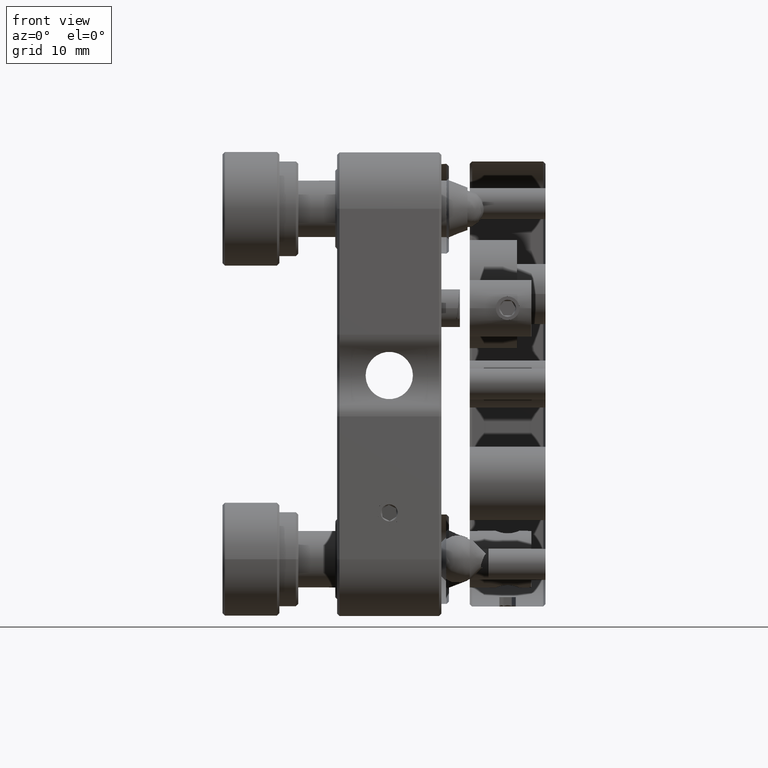
[diagram: clean part render]
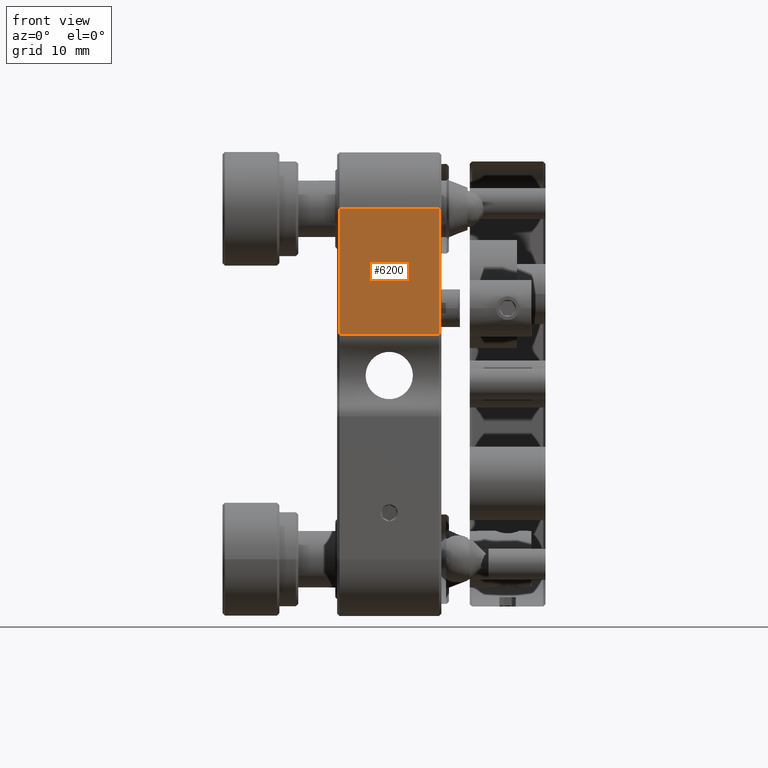
[diagram: same view with one face highlighted and labeled with its STEP entity id]
A machine part, front view. The second image highlights one B-rep face of the part: STEP entity #6200.
In plain terms, the highlighted planar face has unit normal (0, 1, -0).
Its self-contained STEP definition (entity closure, byte-faithful):
#432 = EDGE_CURVE ( 'NONE', #13540, #9449, #1136, .T. ) ;
#1000 = VERTEX_POINT ( 'NONE', #4891 ) ;
#1136 = LINE ( 'NONE', #6491, #1302 ) ;
#1295 = DIRECTION ( 'NONE',  ( 1.000000000000000000, -2.775557561562891351E-16, 0.000000000000000000 ) ) ;
#1302 = VECTOR ( 'NONE', #1295, 1000.000000000000000 ) ;
#1710 = ORIENTED_EDGE ( 'NONE', *, *, #30691, .F. ) ;
#4891 = CARTESIAN_POINT ( 'NONE',  ( -5.250000000000005329, -24.50000000000000355, 5.230127018922178905 ) ) ;
#5492 = EDGE_CURVE ( 'NONE', #9449, #16682, #24437, .T. ) ;
#6200 = ADVANCED_FACE ( 'NONE', ( #19381 ), #21439, .F. ) ;
#6332 = VECTOR ( 'NONE', #26168, 1000.000000000000000 ) ;
#6491 = CARTESIAN_POINT ( 'NONE',  ( -5.500000000000005329, -24.49999999999999289, 18.49999999999999645 ) ) ;
#6923 = LINE ( 'NONE', #20983, #6332 ) ;
#6928 = DIRECTION ( 'NONE',  ( -1.000000000000000000, 1.665334536937734811E-16, -4.397728174726136768E-32 ) ) ;
#7181 = VECTOR ( 'NONE', #6928, 1000.000000000000000 ) ;
#9449 = VERTEX_POINT ( 'NONE', #27547 ) ;
#10412 = CARTESIAN_POINT ( 'NONE',  ( 5.249999999999987566, -24.50000000000000355, 24.49999999999999645 ) ) ;
#11028 = ORIENTED_EDGE ( 'NONE', *, *, #5492, .F. ) ;
#11788 = EDGE_LOOP ( 'NONE', ( #11028, #24943, #1710, #20226 ) ) ;
#13412 = EDGE_CURVE ( 'NONE', #16682, #1000, #28535, .T. ) ;
#13540 = VERTEX_POINT ( 'NONE', #21603 ) ;
#14022 = DIRECTION ( 'NONE',  ( 0.000000000000000000, 2.640747595863114810E-16, 1.000000000000000000 ) ) ;
#14465 = AXIS2_PLACEMENT_3D ( 'NONE', #29136, #31051, #14022 ) ;
#16682 = VERTEX_POINT ( 'NONE', #20537 ) ;
#19381 = FACE_OUTER_BOUND ( 'NONE', #11788, .T. ) ;
#20226 = ORIENTED_EDGE ( 'NONE', *, *, #13412, .F. ) ;
#20537 = CARTESIAN_POINT ( 'NONE',  ( 5.249999999997376321, -24.49999999998306777, 5.230127018922179793 ) ) ;
#20983 = CARTESIAN_POINT ( 'NONE',  ( -5.250000000000007105, -24.50000000000000355, 6.403812919968053192E-15 ) ) ;
#21439 = PLANE ( 'NONE',  #14465 ) ;
#21603 = CARTESIAN_POINT ( 'NONE',  ( -5.249999999970841991, -24.49999999998590283, 18.49999999999999289 ) ) ;
#21921 = DIRECTION ( 'NONE',  ( -0.000000000000000000, -2.640747595863114810E-16, -1.000000000000000000 ) ) ;
#24437 = LINE ( 'NONE', #10412, #28549 ) ;
#24943 = ORIENTED_EDGE ( 'NONE', *, *, #432, .F. ) ;
#26168 = DIRECTION ( 'NONE',  ( 1.320373797931557405E-16, 1.320373797931556912E-16, 1.000000000000000000 ) ) ;
#27547 = CARTESIAN_POINT ( 'NONE',  ( 5.250000000025797142, -24.49999999996885336, 18.49999999999999645 ) ) ;
#28535 = LINE ( 'NONE', #28838, #7181 ) ;
#28549 = VECTOR ( 'NONE', #21921, 1000.000000000000000 ) ;
#28838 = CARTESIAN_POINT ( 'NONE',  ( -5.500000000000005329, -24.50000000000000355, 5.230127018922180682 ) ) ;
#29136 = CARTESIAN_POINT ( 'NONE',  ( -5.500000000000005329, -24.50000000000000000, 24.49999999999999645 ) ) ;
#30691 = EDGE_CURVE ( 'NONE', #1000, #13540, #6923, .T. ) ;
#31051 = DIRECTION ( 'NONE',  ( 1.665334536937734811E-16, 1.000000000000000000, -2.640747595863114810E-16 ) ) ;